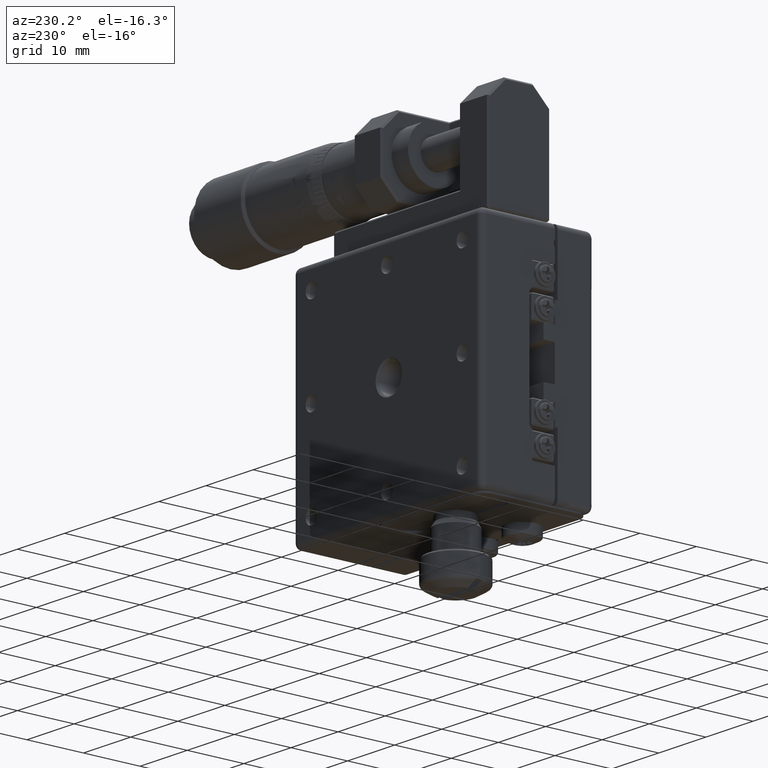
[diagram: clean part render]
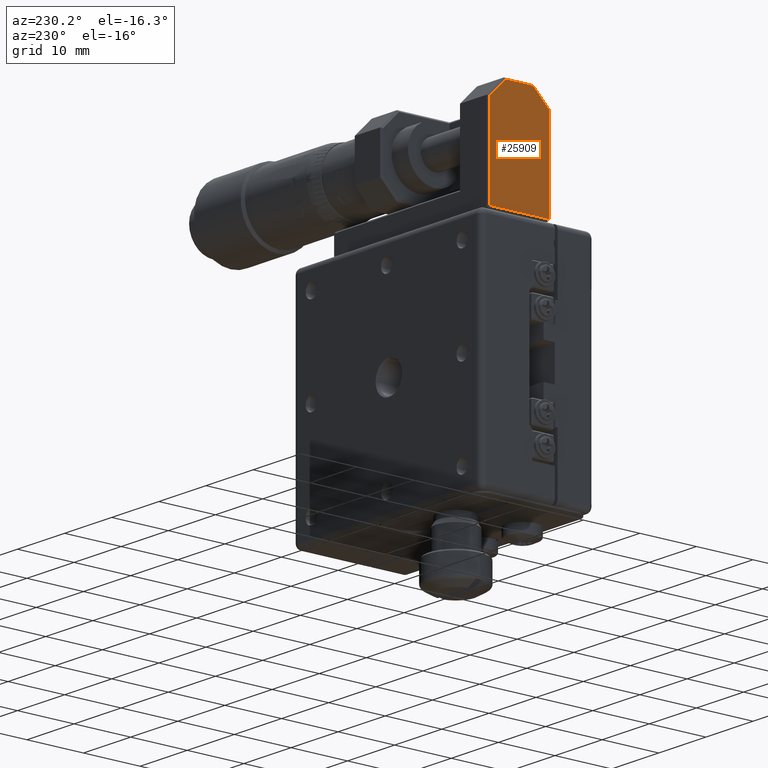
[diagram: same view with one face highlighted and labeled with its STEP entity id]
A machine part, auxiliary view. The second image highlights one B-rep face of the part: STEP entity #25909.
In plain terms, the highlighted planar face has unit normal (1, -0, 0).
Its self-contained STEP definition (entity closure, byte-faithful):
#2760 = VERTEX_POINT ( 'NONE', #32952 ) ;
#4360 = LINE ( 'NONE', #57820, #13023 ) ;
#5207 = EDGE_CURVE ( 'NONE', #29298, #2760, #4360, .T. ) ;
#6562 = EDGE_CURVE ( 'NONE', #32285, #29298, #36214, .T. ) ;
#6715 = AXIS2_PLACEMENT_3D ( 'NONE', #56755, #16733, #39226 ) ;
#9929 = DIRECTION ( 'NONE',  ( 2.624905293603029838E-16, 0.7071067811865489050, -0.7071067811865460184 ) ) ;
#10467 = VERTEX_POINT ( 'NONE', #32539 ) ;
#12749 = EDGE_CURVE ( 'NONE', #35820, #10467, #21962, .T. ) ;
#13023 = VECTOR ( 'NONE', #31259, 1000.000000000000000 ) ;
#15304 = CARTESIAN_POINT ( 'NONE',  ( -19.32032384142934944, 0.5082635399218790040, 20.29999999999999716 ) ) ;
#15373 = EDGE_CURVE ( 'NONE', #10467, #32285, #40522, .T. ) ;
#15711 = VECTOR ( 'NONE', #39777, 1000.000000000000114 ) ;
#16322 = LINE ( 'NONE', #51702, #45035 ) ;
#16733 = DIRECTION ( 'NONE',  ( 1.000000000000000000, -2.775557561562869781E-17, 3.434620910002040212E-16 ) ) ;
#16757 = ORIENTED_EDGE ( 'NONE', *, *, #15373, .T. ) ;
#16938 = LINE ( 'NONE', #39125, #36697 ) ;
#19192 = DIRECTION ( 'NONE',  ( 2.775557561562869781E-17, 1.000000000000000000, 1.123714534568353838E-17 ) ) ;
#19929 = ORIENTED_EDGE ( 'NONE', *, *, #26563, .T. ) ;
#21962 = LINE ( 'NONE', #35114, #15711 ) ;
#22187 = CARTESIAN_POINT ( 'NONE',  ( -19.32032384142934944, 10.99613150556590035, 35.78786796564405392 ) ) ;
#24931 = PLANE ( 'NONE',  #6715 ) ;
#25909 = ADVANCED_FACE ( 'NONE', ( #47162 ), #24931, .F. ) ;
#26563 = EDGE_CURVE ( 'NONE', #38859, #35820, #16322, .T. ) ;
#29298 = VERTEX_POINT ( 'NONE', #48264 ) ;
#31259 = DIRECTION ( 'NONE',  ( 3.434620910002055003E-16, 1.123714534568477868E-17, -1.000000000000000000 ) ) ;
#32285 = VERTEX_POINT ( 'NONE', #33109 ) ;
#32539 = CARTESIAN_POINT ( 'NONE',  ( -19.32032384142934944, 3.332527608633814697, 38.69999999999999574 ) ) ;
#32952 = CARTESIAN_POINT ( 'NONE',  ( -19.32032384142934944, 10.90826353992190079, 20.29999999999999716 ) ) ;
#33109 = CARTESIAN_POINT ( 'NONE',  ( -19.32032384142934944, 8.083999471209940779, 38.69999999999999574 ) ) ;
#33592 = VECTOR ( 'NONE', #19192, 1000.000000000000000 ) ;
#34141 = DIRECTION ( 'NONE',  ( -3.434620910002055003E-16, -1.123714534568477868E-17, 1.000000000000000000 ) ) ;
#34409 = ORIENTED_EDGE ( 'NONE', *, *, #5207, .T. ) ;
#35114 = CARTESIAN_POINT ( 'NONE',  ( -19.32032384142934944, 3.420395574277844908, 38.78786796564405392 ) ) ;
#35280 = EDGE_LOOP ( 'NONE', ( #34409, #36971, #19929, #46573, #16757, #42695 ) ) ;
#35318 = DIRECTION ( 'NONE',  ( -2.775557561562869781E-17, -1.000000000000000000, -1.123714534568353838E-17 ) ) ;
#35820 = VERTEX_POINT ( 'NONE', #42622 ) ;
#36214 = LINE ( 'NONE', #22187, #45802 ) ;
#36697 = VECTOR ( 'NONE', #35318, 1000.000000000000000 ) ;
#36971 = ORIENTED_EDGE ( 'NONE', *, *, #52656, .T. ) ;
#38859 = VERTEX_POINT ( 'NONE', #15304 ) ;
#39125 = CARTESIAN_POINT ( 'NONE',  ( -19.32032384142934944, 11.20826353992189972, 20.29999999999999716 ) ) ;
#39226 = DIRECTION ( 'NONE',  ( -3.434620910002040212E-16, 0.000000000000000000, 1.000000000000000000 ) ) ;
#39777 = DIRECTION ( 'NONE',  ( -2.232382178932095229E-16, 0.7071067811865460184, 0.7071067811865489050 ) ) ;
#40522 = LINE ( 'NONE', #45195, #33592 ) ;
#42622 = CARTESIAN_POINT ( 'NONE',  ( -19.32032384142934944, 0.5082635399218790040, 35.87573593128804816 ) ) ;
#42695 = ORIENTED_EDGE ( 'NONE', *, *, #6562, .T. ) ;
#45035 = VECTOR ( 'NONE', #34141, 1000.000000000000000 ) ;
#45195 = CARTESIAN_POINT ( 'NONE',  ( -19.32032384142934944, 11.20826353992189972, 38.69999999999999574 ) ) ;
#45802 = VECTOR ( 'NONE', #9929, 1000.000000000000114 ) ;
#46573 = ORIENTED_EDGE ( 'NONE', *, *, #12749, .T. ) ;
#47162 = FACE_OUTER_BOUND ( 'NONE', #35280, .T. ) ;
#48264 = CARTESIAN_POINT ( 'NONE',  ( -19.32032384142934944, 10.90826353992185993, 35.87573593128804816 ) ) ;
#51702 = CARTESIAN_POINT ( 'NONE',  ( -19.32032384142934944, 0.5082635399218790040, 20.00000000000000000 ) ) ;
#52656 = EDGE_CURVE ( 'NONE', #2760, #38859, #16938, .T. ) ;
#56755 = CARTESIAN_POINT ( 'NONE',  ( -19.32032384142934944, 11.20826353992189972, 20.00000000000000000 ) ) ;
#57820 = CARTESIAN_POINT ( 'NONE',  ( -19.32032384142934944, 10.90826353992190079, 20.00000000000000000 ) ) ;